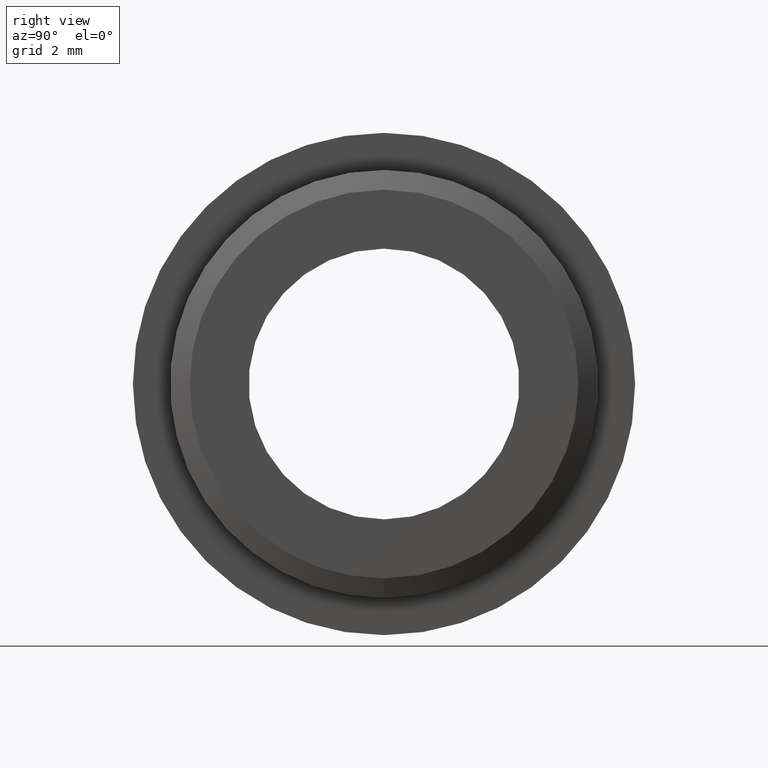
[diagram: clean part render]
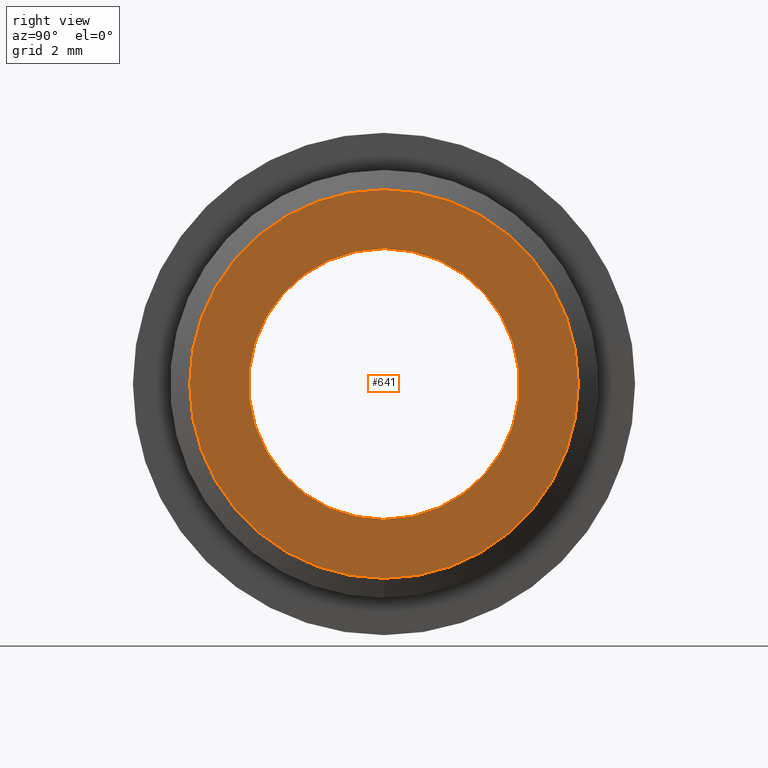
[diagram: same view with one face highlighted and labeled with its STEP entity id]
A machine part, right view. The second image highlights one B-rep face of the part: STEP entity #641.
In plain terms, the highlighted planar face has unit normal (-1, 0, 0).
Its self-contained STEP definition (entity closure, byte-faithful):
#2 = VERTEX_POINT ( 'NONE', #193 ) ;
#40 = DIRECTION ( 'NONE',  ( -0.0000000000000000000, 0.0000000000000000000, 1.000000000000000000 ) ) ;
#41 = CIRCLE ( 'NONE', #42, 4.450000000000000200 ) ;
#42 = AXIS2_PLACEMENT_3D ( 'NONE', #439, #95, #495 ) ;
#82 = VERTEX_POINT ( 'NONE', #404 ) ;
#95 = DIRECTION ( 'NONE',  ( -1.000000000000000000, -0.0000000000000000000, -0.0000000000000000000 ) ) ;
#107 = CARTESIAN_POINT ( 'NONE',  ( 3.000000000000002700, 0.0000000000000000000, 0.0000000000000000000 ) ) ;
#114 = AXIS2_PLACEMENT_3D ( 'NONE', #657, #211, #40 ) ;
#118 = EDGE_CURVE ( 'NONE', #592, #417, #394, .T. ) ;
#123 = EDGE_LOOP ( 'NONE', ( #316, #590 ) ) ;
#143 = ORIENTED_EDGE ( 'NONE', *, *, #532, .F. ) ;
#152 = EDGE_LOOP ( 'NONE', ( #716, #143 ) ) ;
#155 = CIRCLE ( 'NONE', #645, 4.450000000000000200 ) ;
#173 = DIRECTION ( 'NONE',  ( 0.0000000000000000000, 0.0000000000000000000, 1.000000000000000000 ) ) ;
#190 = EDGE_CURVE ( 'NONE', #82, #2, #155, .T. ) ;
#191 = DIRECTION ( 'NONE',  ( -1.000000000000000000, -0.0000000000000000000, -0.0000000000000000000 ) ) ;
#193 = CARTESIAN_POINT ( 'NONE',  ( 3.000000000000002700, 5.725223786013876300E-016, -4.450000000000000200 ) ) ;
#211 = DIRECTION ( 'NONE',  ( -1.000000000000000000, 0.0000000000000000000, -0.0000000000000000000 ) ) ;
#240 = CIRCLE ( 'NONE', #693, 3.100000000000000500 ) ;
#282 = DIRECTION ( 'NONE',  ( -1.000000000000000000, -0.0000000000000000000, -0.0000000000000000000 ) ) ;
#316 = ORIENTED_EDGE ( 'NONE', *, *, #414, .T. ) ;
#394 = CIRCLE ( 'NONE', #602, 3.100000000000000500 ) ;
#404 = CARTESIAN_POINT ( 'NONE',  ( 3.000000000000002700, 0.0000000000000000000, 4.450000000000000200 ) ) ;
#414 = EDGE_CURVE ( 'NONE', #417, #592, #240, .T. ) ;
#417 = VERTEX_POINT ( 'NONE', #622 ) ;
#439 = CARTESIAN_POINT ( 'NONE',  ( 3.000000000000002700, 0.0000000000000000000, 0.0000000000000000000 ) ) ;
#448 = FACE_OUTER_BOUND ( 'NONE', #152, .T. ) ;
#495 = DIRECTION ( 'NONE',  ( 0.0000000000000000000, 0.0000000000000000000, 1.000000000000000000 ) ) ;
#502 = DIRECTION ( 'NONE',  ( -1.000000000000000000, -0.0000000000000000000, -0.0000000000000000000 ) ) ;
#527 = CARTESIAN_POINT ( 'NONE',  ( 3.000000000000002700, 0.0000000000000000000, 0.0000000000000000000 ) ) ;
#532 = EDGE_CURVE ( 'NONE', #2, #82, #41, .T. ) ;
#560 = FACE_BOUND ( 'NONE', #123, .T. ) ;
#563 = CARTESIAN_POINT ( 'NONE',  ( 3.000000000000002700, 3.796405077356795400E-016, -3.100000000000000500 ) ) ;
#584 = DIRECTION ( 'NONE',  ( 0.0000000000000000000, 0.0000000000000000000, 1.000000000000000000 ) ) ;
#590 = ORIENTED_EDGE ( 'NONE', *, *, #118, .T. ) ;
#592 = VERTEX_POINT ( 'NONE', #563 ) ;
#602 = AXIS2_PLACEMENT_3D ( 'NONE', #527, #191, #584 ) ;
#620 = CARTESIAN_POINT ( 'NONE',  ( 3.000000000000002700, 0.0000000000000000000, 0.0000000000000000000 ) ) ;
#622 = CARTESIAN_POINT ( 'NONE',  ( 3.000000000000002700, 0.0000000000000000000, 3.100000000000000500 ) ) ;
#641 = ADVANCED_FACE ( 'NONE', ( #448, #560 ), #717, .F. ) ;
#645 = AXIS2_PLACEMENT_3D ( 'NONE', #620, #282, #663 ) ;
#657 = CARTESIAN_POINT ( 'NONE',  ( 3.000000000000001300, 3.100000000000000500, 0.0000000000000000000 ) ) ;
#663 = DIRECTION ( 'NONE',  ( 0.0000000000000000000, 0.0000000000000000000, 1.000000000000000000 ) ) ;
#693 = AXIS2_PLACEMENT_3D ( 'NONE', #107, #502, #173 ) ;
#716 = ORIENTED_EDGE ( 'NONE', *, *, #190, .F. ) ;
#717 = PLANE ( 'NONE',  #114 ) ;